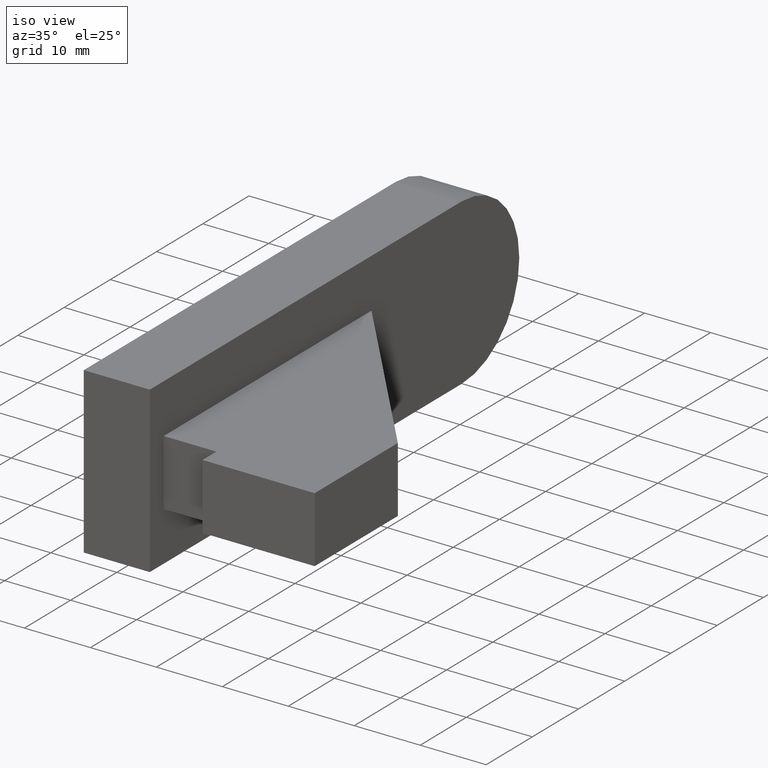
[diagram: clean part render]
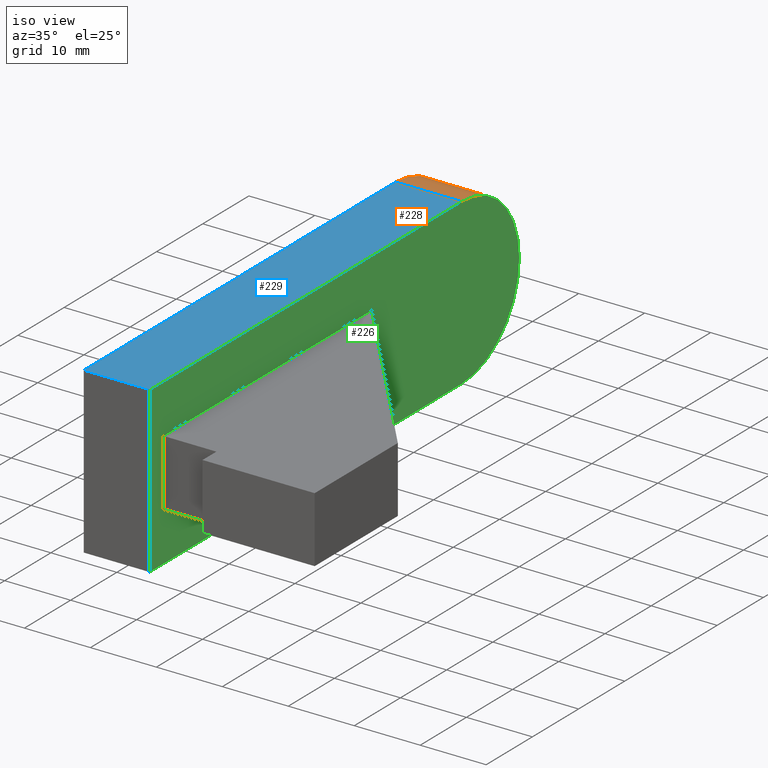
[diagram: same view with three faces highlighted in distinct colors, each labeled with its STEP entity id]
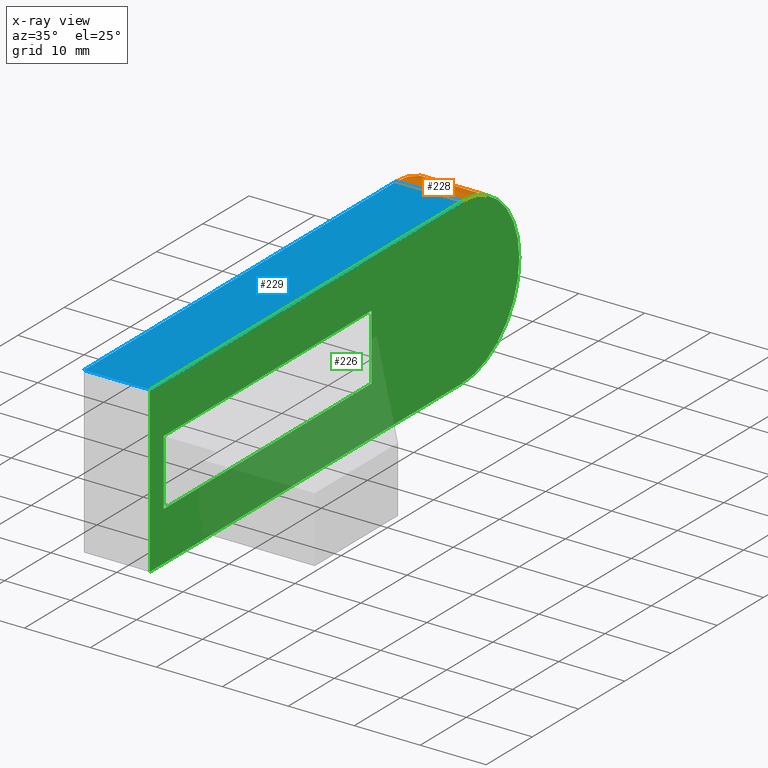
[diagram: x-ray of the same camera — body ghosted, the three highlighted faces saturated]
A machine part, iso view with three faces highlighted in distinct colors.
The next image is the same camera in x-ray (body ghosted, the three faces saturated) — at least one of them is partly hidden behind the body in this view.
Their STEP definitions:

[orange] entity #228 — the highlighted cylindrical surface (partial cylindrical patch) has radius 12.5 mm, axis along (-1, 0, 0).
#17=CYLINDRICAL_SURFACE('',#262,12.5);
#21=FACE_OUTER_BOUND('',#35,.T.);
#35=EDGE_LOOP('',(#166,#167,#168,#169));
#46=CIRCLE('',#260,12.5);
#47=CIRCLE('',#263,12.5);
#56=LINE('',#356,#84);
#58=LINE('',#361,#86);
#84=VECTOR('',#290,10.);
#86=VECTOR('',#296,10.);
#106=VERTEX_POINT('',#339);
#107=VERTEX_POINT('',#341);
#113=VERTEX_POINT('',#354);
#114=VERTEX_POINT('',#359);
#126=EDGE_CURVE('',#107,#106,#46,.T.);
#133=EDGE_CURVE('',#106,#113,#56,.T.);
#135=EDGE_CURVE('',#113,#114,#47,.T.);
#136=EDGE_CURVE('',#107,#114,#58,.T.);
#166=ORIENTED_EDGE('',*,*,#135,.T.);
#167=ORIENTED_EDGE('',*,*,#136,.F.);
#168=ORIENTED_EDGE('',*,*,#126,.T.);
#169=ORIENTED_EDGE('',*,*,#133,.T.);
#228=ADVANCED_FACE('',(#21),#17,.T.);
#260=AXIS2_PLACEMENT_3D('',#342,#280,#281);
#262=AXIS2_PLACEMENT_3D('',#358,#292,#293);
#263=AXIS2_PLACEMENT_3D('',#360,#294,#295);
#280=DIRECTION('center_axis',(-1.,0.,0.));
#281=DIRECTION('ref_axis',(0.,0.,1.));
#290=DIRECTION('',(-1.,0.,0.));
#292=DIRECTION('center_axis',(-1.,0.,0.));
#293=DIRECTION('ref_axis',(0.,0.,1.));
#294=DIRECTION('center_axis',(1.,0.,0.));
#295=DIRECTION('ref_axis',(0.,0.,1.));
#296=DIRECTION('',(-1.,0.,0.));
#339=CARTESIAN_POINT('',(-25.,67.5,-12.5));
#341=CARTESIAN_POINT('',(-25.,67.5,12.5));
#342=CARTESIAN_POINT('Origin',(-25.,67.5,-4.44089209850063E-15));
#354=CARTESIAN_POINT('',(-35.,67.5,-12.5));
#356=CARTESIAN_POINT('',(-25.,67.5,-12.5));
#358=CARTESIAN_POINT('Origin',(-25.,67.5,-4.44089209850063E-15));
#359=CARTESIAN_POINT('',(-35.,67.5,12.5));
#360=CARTESIAN_POINT('Origin',(-35.,67.5,-4.44089209850063E-15));
#361=CARTESIAN_POINT('',(-25.,67.5,12.5));

[blue] entity #229 — the highlighted planar face has unit normal (0, 0, 1).
#22=FACE_OUTER_BOUND('',#36,.T.);
#36=EDGE_LOOP('',(#170,#171,#172,#173));
#50=LINE('',#343,#78);
#58=LINE('',#361,#86);
#59=LINE('',#364,#87);
#60=LINE('',#365,#88);
#78=VECTOR('',#282,10.);
#86=VECTOR('',#296,10.);
#87=VECTOR('',#299,10.);
#88=VECTOR('',#300,10.);
#105=VERTEX_POINT('',#337);
#107=VERTEX_POINT('',#341);
#114=VERTEX_POINT('',#359);
#115=VERTEX_POINT('',#363);
#127=EDGE_CURVE('',#105,#107,#50,.T.);
#136=EDGE_CURVE('',#107,#114,#58,.T.);
#137=EDGE_CURVE('',#114,#115,#59,.T.);
#138=EDGE_CURVE('',#105,#115,#60,.T.);
#170=ORIENTED_EDGE('',*,*,#137,.T.);
#171=ORIENTED_EDGE('',*,*,#138,.F.);
#172=ORIENTED_EDGE('',*,*,#127,.T.);
#173=ORIENTED_EDGE('',*,*,#136,.T.);
#216=PLANE('',#264);
#229=ADVANCED_FACE('',(#22),#216,.T.);
#264=AXIS2_PLACEMENT_3D('',#362,#297,#298);
#282=DIRECTION('',(0.,1.,-1.97372982155583E-16));
#296=DIRECTION('',(-1.,0.,0.));
#297=DIRECTION('center_axis',(0.,1.97372982155583E-16,1.));
#298=DIRECTION('ref_axis',(1.,0.,0.));
#299=DIRECTION('',(0.,-1.,1.97372982155583E-16));
#300=DIRECTION('',(-1.,0.,0.));
#337=CARTESIAN_POINT('',(-25.,2.22044604925031E-15,12.5));
#341=CARTESIAN_POINT('',(-25.,67.5,12.5));
#343=CARTESIAN_POINT('',(-25.,2.22044604925031E-15,12.5));
#359=CARTESIAN_POINT('',(-35.,67.5,12.5));
#361=CARTESIAN_POINT('',(-25.,67.5,12.5));
#362=CARTESIAN_POINT('Origin',(-25.,67.5,12.5));
#363=CARTESIAN_POINT('',(-35.,2.22044604925031E-15,12.5));
#364=CARTESIAN_POINT('',(-35.,2.22044604925031E-15,12.5));
#365=CARTESIAN_POINT('',(-25.,2.22044604925031E-15,12.5));

[green] entity #226 — the highlighted planar face has unit normal (1, 0, 0).
#18=FACE_BOUND('',#33,.T.);
#19=FACE_OUTER_BOUND('',#32,.T.);
#32=EDGE_LOOP('',(#154,#155,#156,#157));
#33=EDGE_LOOP('',(#158,#159,#160,#161));
#46=CIRCLE('',#260,12.5);
#48=LINE('',#338,#76);
#49=LINE('',#340,#77);
#50=LINE('',#343,#78);
#51=LINE('',#346,#79);
#52=LINE('',#348,#80);
#53=LINE('',#350,#81);
#54=LINE('',#351,#82);
#76=VECTOR('',#278,10.);
#77=VECTOR('',#279,10.);
#78=VECTOR('',#282,10.);
#79=VECTOR('',#283,10.);
#80=VECTOR('',#284,10.);
#81=VECTOR('',#285,10.);
#82=VECTOR('',#286,10.);
#104=VERTEX_POINT('',#336);
#105=VERTEX_POINT('',#337);
#106=VERTEX_POINT('',#339);
#107=VERTEX_POINT('',#341);
#108=VERTEX_POINT('',#344);
#109=VERTEX_POINT('',#345);
#110=VERTEX_POINT('',#347);
#111=VERTEX_POINT('',#349);
#124=EDGE_CURVE('',#104,#105,#48,.T.);
#125=EDGE_CURVE('',#106,#104,#49,.T.);
#126=EDGE_CURVE('',#107,#106,#46,.T.);
#127=EDGE_CURVE('',#105,#107,#50,.T.);
#128=EDGE_CURVE('',#108,#109,#51,.T.);
#129=EDGE_CURVE('',#110,#109,#52,.T.);
#130=EDGE_CURVE('',#110,#111,#53,.T.);
#131=EDGE_CURVE('',#111,#108,#54,.T.);
#154=ORIENTED_EDGE('',*,*,#124,.F.);
#155=ORIENTED_EDGE('',*,*,#125,.F.);
#156=ORIENTED_EDGE('',*,*,#126,.F.);
#157=ORIENTED_EDGE('',*,*,#127,.F.);
#158=ORIENTED_EDGE('',*,*,#128,.T.);
#159=ORIENTED_EDGE('',*,*,#129,.F.);
#160=ORIENTED_EDGE('',*,*,#130,.T.);
#161=ORIENTED_EDGE('',*,*,#131,.T.);
#214=PLANE('',#259);
#226=ADVANCED_FACE('',(#19,#18),#214,.T.);
#259=AXIS2_PLACEMENT_3D('',#335,#276,#277);
#260=AXIS2_PLACEMENT_3D('',#342,#280,#281);
#276=DIRECTION('center_axis',(1.,0.,0.));
#277=DIRECTION('ref_axis',(0.,0.,-1.));
#278=DIRECTION('',(0.,0.,1.));
#279=DIRECTION('',(0.,-1.,-1.97372982155583E-16));
#280=DIRECTION('center_axis',(-1.,0.,0.));
#281=DIRECTION('ref_axis',(0.,0.,1.));
#282=DIRECTION('',(0.,1.,-1.97372982155583E-16));
#283=DIRECTION('',(0.,-1.,0.));
#284=DIRECTION('',(0.,0.,-1.));
#285=DIRECTION('',(0.,1.,0.));
#286=DIRECTION('',(0.,0.,-1.));
#335=CARTESIAN_POINT('Origin',(-25.,37.7015669275063,1.66533453693773E-15));
#336=CARTESIAN_POINT('',(-25.,2.22044604925031E-15,-12.5));
#337=CARTESIAN_POINT('',(-25.,2.22044604925031E-15,12.5));
#338=CARTESIAN_POINT('',(-25.,2.22044604925031E-15,-12.5));
#339=CARTESIAN_POINT('',(-25.,67.5,-12.5));
#340=CARTESIAN_POINT('',(-25.,67.5,-12.5));
#341=CARTESIAN_POINT('',(-25.,67.5,12.5));
#342=CARTESIAN_POINT('Origin',(-25.,67.5,-4.44089209850063E-15));
#343=CARTESIAN_POINT('',(-25.,2.22044604925031E-15,12.5));
#344=CARTESIAN_POINT('',(-25.,48.,-5.));
#345=CARTESIAN_POINT('',(-25.,3.,-5.));
#346=CARTESIAN_POINT('',(-25.,3.,-5.));
#347=CARTESIAN_POINT('',(-25.,3.,5.));
#348=CARTESIAN_POINT('',(-25.,3.,0.));
#349=CARTESIAN_POINT('',(-25.,48.,5.));
#350=CARTESIAN_POINT('',(-25.,3.,5.));
#351=CARTESIAN_POINT('',(-25.,48.,0.));